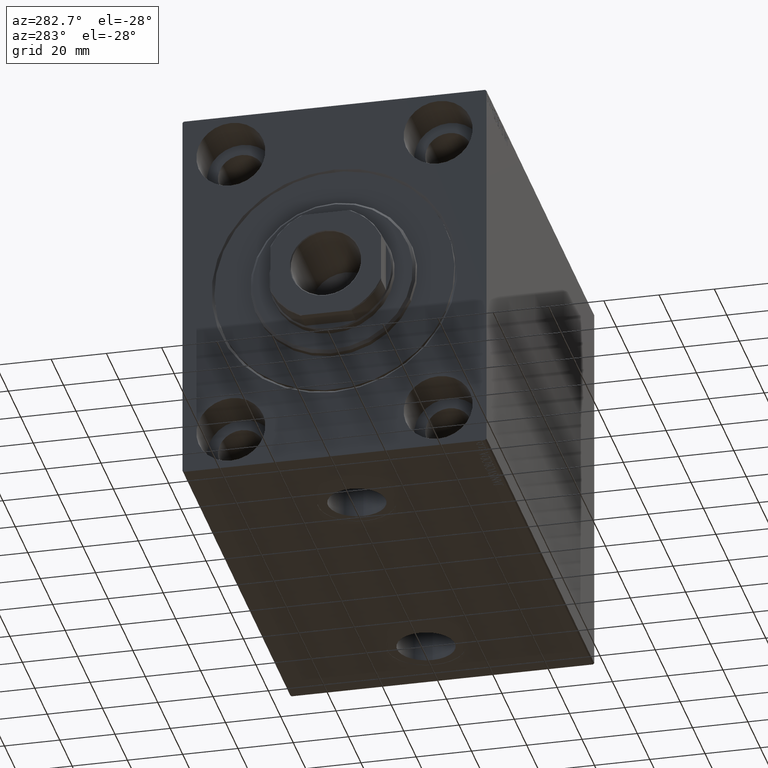
[diagram: clean part render]
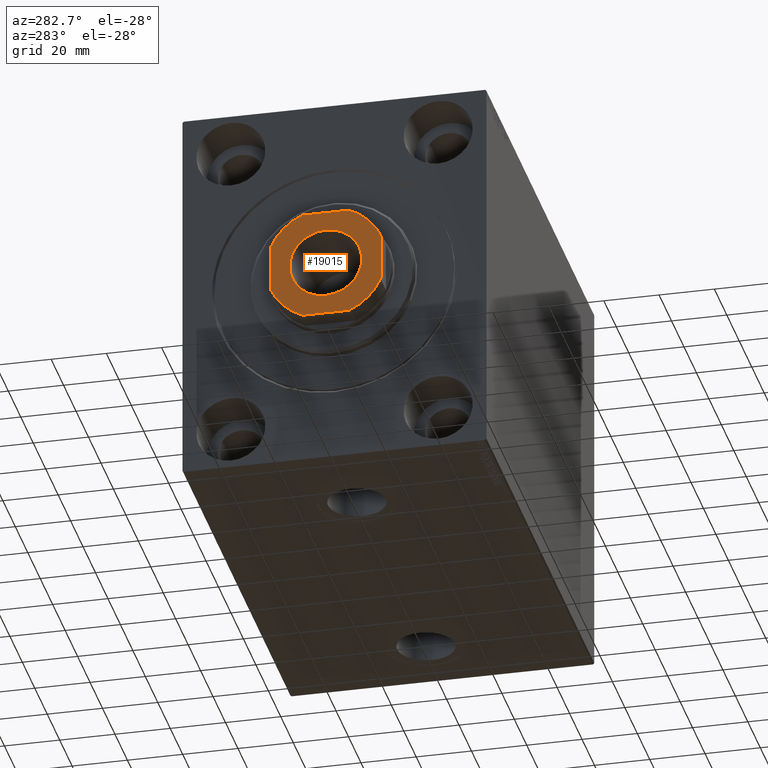
[diagram: same view with one face highlighted and labeled with its STEP entity id]
A machine part, auxiliary view. The second image highlights one B-rep face of the part: STEP entity #19015.
In plain terms, the highlighted planar face has unit normal (-1, 0, 0).
Its self-contained STEP definition (entity closure, byte-faithful):
#152 = CARTESIAN_POINT ( 'NONE',  ( 20.00000000000000000, -8.419619943916705651, 166.0000000000000000 ) ) ;
#1768 = DIRECTION ( 'NONE',  ( -2.602085213965210149E-16, 1.000000000000000000, -0.000000000000000000 ) ) ;
#1987 = AXIS2_PLACEMENT_3D ( 'NONE', #17622, #31832, #41609 ) ;
#1999 = EDGE_CURVE ( 'NONE', #30936, #16567, #28973, .T. ) ;
#2372 = CARTESIAN_POINT ( 'NONE',  ( 0.000000000000000000, 0.000000000000000000, 166.0000000000000000 ) ) ;
#2624 = ORIENTED_EDGE ( 'NONE', *, *, #25383, .T. ) ;
#4053 = ORIENTED_EDGE ( 'NONE', *, *, #13025, .T. ) ;
#4264 = CARTESIAN_POINT ( 'NONE',  ( 0.000000000000000000, 0.000000000000000000, 166.0000000000000000 ) ) ;
#4589 = ORIENTED_EDGE ( 'NONE', *, *, #18953, .T. ) ;
#6365 = EDGE_CURVE ( 'NONE', #17814, #27436, #18369, .T. ) ;
#7648 = CARTESIAN_POINT ( 'NONE',  ( 8.419619943916673677, -20.00000000000001066, 166.0000000000000000 ) ) ;
#8808 = CARTESIAN_POINT ( 'NONE',  ( 13.04999999999997762, 0.000000000000000000, 166.0000000000000000 ) ) ;
#8972 = LINE ( 'NONE', #25901, #43381 ) ;
#9111 = AXIS2_PLACEMENT_3D ( 'NONE', #33418, #12961, #43412 ) ;
#9393 = AXIS2_PLACEMENT_3D ( 'NONE', #23388, #43401, #12949 ) ;
#11894 = DIRECTION ( 'NONE',  ( -1.000000000000000000, -8.673617379884035472E-17, -0.000000000000000000 ) ) ;
#12949 = DIRECTION ( 'NONE',  ( 1.000000000000000000, 0.000000000000000000, 0.000000000000000000 ) ) ;
#12961 = DIRECTION ( 'NONE',  ( -0.000000000000000000, 0.000000000000000000, 1.000000000000000000 ) ) ;
#13025 = EDGE_CURVE ( 'NONE', #16567, #28315, #20838, .T. ) ;
#13048 = CARTESIAN_POINT ( 'NONE',  ( -8.419619943916853089, -20.00000000000001066, 166.0000000000000000 ) ) ;
#13304 = ORIENTED_EDGE ( 'NONE', *, *, #17359, .T. ) ;
#13761 = CARTESIAN_POINT ( 'NONE',  ( 0.000000000000000000, 0.000000000000000000, 166.0000000000000000 ) ) ;
#13903 = EDGE_CURVE ( 'NONE', #28315, #15729, #35556, .T. ) ;
#14281 = CARTESIAN_POINT ( 'NONE',  ( -13.04999999999997762, 1.598164072887293210E-15, 166.0000000000000000 ) ) ;
#14851 = EDGE_CURVE ( 'NONE', #20292, #17814, #8972, .T. ) ;
#15729 = VERTEX_POINT ( 'NONE', #152 ) ;
#16051 = EDGE_LOOP ( 'NONE', ( #2624, #29846, #41888, #35015, #31540, #38730, #4053, #32763 ) ) ;
#16567 = VERTEX_POINT ( 'NONE', #13048 ) ;
#16828 = CARTESIAN_POINT ( 'NONE',  ( -19.99999999999999645, -20.00000000000001066, 166.0000000000000000 ) ) ;
#17359 = EDGE_CURVE ( 'NONE', #43717, #25293, #35656, .T. ) ;
#17622 = CARTESIAN_POINT ( 'NONE',  ( 0.000000000000000000, 0.000000000000000000, 166.0000000000000000 ) ) ;
#17814 = VERTEX_POINT ( 'NONE', #29246 ) ;
#18369 = CIRCLE ( 'NONE', #9111, 21.70000000000006679 ) ;
#18953 = EDGE_CURVE ( 'NONE', #25293, #43717, #40626, .T. ) ;
#19015 = ADVANCED_FACE ( 'NONE', ( #33620, #19841 ), #33405, .T. ) ;
#19841 = FACE_OUTER_BOUND ( 'NONE', #16051, .T. ) ;
#20292 = VERTEX_POINT ( 'NONE', #40679 ) ;
#20775 = AXIS2_PLACEMENT_3D ( 'NONE', #39207, #29421, #42971 ) ;
#20838 = LINE ( 'NONE', #16828, #39115 ) ;
#20887 = DIRECTION ( 'NONE',  ( 1.000000000000000000, 0.000000000000000000, 0.000000000000000000 ) ) ;
#22848 = DIRECTION ( 'NONE',  ( 1.000000000000000000, 0.000000000000000000, 0.000000000000000000 ) ) ;
#23388 = CARTESIAN_POINT ( 'NONE',  ( 0.000000000000000000, 0.000000000000000000, 166.0000000000000000 ) ) ;
#23638 = VECTOR ( 'NONE', #1768, 1000.000000000000000 ) ;
#24182 = EDGE_CURVE ( 'NONE', #27436, #30936, #36304, .T. ) ;
#25293 = VERTEX_POINT ( 'NONE', #14281 ) ;
#25383 = EDGE_CURVE ( 'NONE', #15729, #32205, #32272, .T. ) ;
#25833 = CARTESIAN_POINT ( 'NONE',  ( 19.99999999999999289, 8.419619943916721638, 166.0000000000000000 ) ) ;
#25901 = CARTESIAN_POINT ( 'NONE',  ( -20.00000000000000711, 19.99999999999998934, 166.0000000000000000 ) ) ;
#26426 = AXIS2_PLACEMENT_3D ( 'NONE', #13761, #27338, #20887 ) ;
#27338 = DIRECTION ( 'NONE',  ( 0.000000000000000000, -0.000000000000000000, -1.000000000000000000 ) ) ;
#27436 = VERTEX_POINT ( 'NONE', #43467 ) ;
#28315 = VERTEX_POINT ( 'NONE', #7648 ) ;
#28973 = CIRCLE ( 'NONE', #1987, 21.70000000000006679 ) ;
#29153 = AXIS2_PLACEMENT_3D ( 'NONE', #2372, #36202, #22848 ) ;
#29246 = CARTESIAN_POINT ( 'NONE',  ( -8.419619943916897498, 19.99999999999999289, 166.0000000000000000 ) ) ;
#29370 = CARTESIAN_POINT ( 'NONE',  ( 19.99999999999999289, 19.99999999999999289, 166.0000000000000000 ) ) ;
#29421 = DIRECTION ( 'NONE',  ( 0.000000000000000000, -0.000000000000000000, -1.000000000000000000 ) ) ;
#29846 = ORIENTED_EDGE ( 'NONE', *, *, #33219, .T. ) ;
#30936 = VERTEX_POINT ( 'NONE', #39990 ) ;
#31065 = DIRECTION ( 'NONE',  ( 1.000000000000000000, 0.000000000000000000, 0.000000000000000000 ) ) ;
#31540 = ORIENTED_EDGE ( 'NONE', *, *, #24182, .T. ) ;
#31832 = DIRECTION ( 'NONE',  ( -0.000000000000000000, 0.000000000000000000, 1.000000000000000000 ) ) ;
#32205 = VERTEX_POINT ( 'NONE', #25833 ) ;
#32272 = LINE ( 'NONE', #29370, #23638 ) ;
#32362 = AXIS2_PLACEMENT_3D ( 'NONE', #4264, #34969, #38092 ) ;
#32763 = ORIENTED_EDGE ( 'NONE', *, *, #13903, .T. ) ;
#33219 = EDGE_CURVE ( 'NONE', #32205, #20292, #38042, .T. ) ;
#33405 = PLANE ( 'NONE',  #9393 ) ;
#33418 = CARTESIAN_POINT ( 'NONE',  ( 0.000000000000000000, 0.000000000000000000, 166.0000000000000000 ) ) ;
#33620 = FACE_BOUND ( 'NONE', #35962, .T. ) ;
#34969 = DIRECTION ( 'NONE',  ( -0.000000000000000000, 0.000000000000000000, 1.000000000000000000 ) ) ;
#35015 = ORIENTED_EDGE ( 'NONE', *, *, #6365, .T. ) ;
#35556 = CIRCLE ( 'NONE', #29153, 21.69999999999999574 ) ;
#35656 = CIRCLE ( 'NONE', #26426, 13.04999999999997762 ) ;
#35962 = EDGE_LOOP ( 'NONE', ( #13304, #4589 ) ) ;
#36202 = DIRECTION ( 'NONE',  ( -0.000000000000000000, 0.000000000000000000, 1.000000000000000000 ) ) ;
#36304 = LINE ( 'NONE', #42099, #42085 ) ;
#38042 = CIRCLE ( 'NONE', #32362, 21.69999999999999929 ) ;
#38092 = DIRECTION ( 'NONE',  ( 1.000000000000000000, 0.000000000000000000, 0.000000000000000000 ) ) ;
#38730 = ORIENTED_EDGE ( 'NONE', *, *, #1999, .T. ) ;
#39115 = VECTOR ( 'NONE', #31065, 1000.000000000000000 ) ;
#39207 = CARTESIAN_POINT ( 'NONE',  ( 0.000000000000000000, 0.000000000000000000, 166.0000000000000000 ) ) ;
#39643 = DIRECTION ( 'NONE',  ( 2.602085213965210642E-16, -1.000000000000000000, 0.000000000000000000 ) ) ;
#39990 = CARTESIAN_POINT ( 'NONE',  ( -20.00000000000000000, -8.419619943916874405, 166.0000000000000000 ) ) ;
#40626 = CIRCLE ( 'NONE', #20775, 13.04999999999997762 ) ;
#40679 = CARTESIAN_POINT ( 'NONE',  ( 8.419619943916721638, 19.99999999999999289, 166.0000000000000000 ) ) ;
#41609 = DIRECTION ( 'NONE',  ( 1.000000000000000000, 0.000000000000000000, 0.000000000000000000 ) ) ;
#41888 = ORIENTED_EDGE ( 'NONE', *, *, #14851, .T. ) ;
#42085 = VECTOR ( 'NONE', #39643, 1000.000000000000000 ) ;
#42099 = CARTESIAN_POINT ( 'NONE',  ( -20.00000000000000711, 19.99999999999998934, 166.0000000000000000 ) ) ;
#42971 = DIRECTION ( 'NONE',  ( 1.000000000000000000, 0.000000000000000000, 0.000000000000000000 ) ) ;
#43381 = VECTOR ( 'NONE', #11894, 1000.000000000000000 ) ;
#43401 = DIRECTION ( 'NONE',  ( -0.000000000000000000, 0.000000000000000000, 1.000000000000000000 ) ) ;
#43412 = DIRECTION ( 'NONE',  ( 1.000000000000000000, 0.000000000000000000, 0.000000000000000000 ) ) ;
#43467 = CARTESIAN_POINT ( 'NONE',  ( -20.00000000000000355, 8.419619943916861970, 166.0000000000000000 ) ) ;
#43717 = VERTEX_POINT ( 'NONE', #8808 ) ;